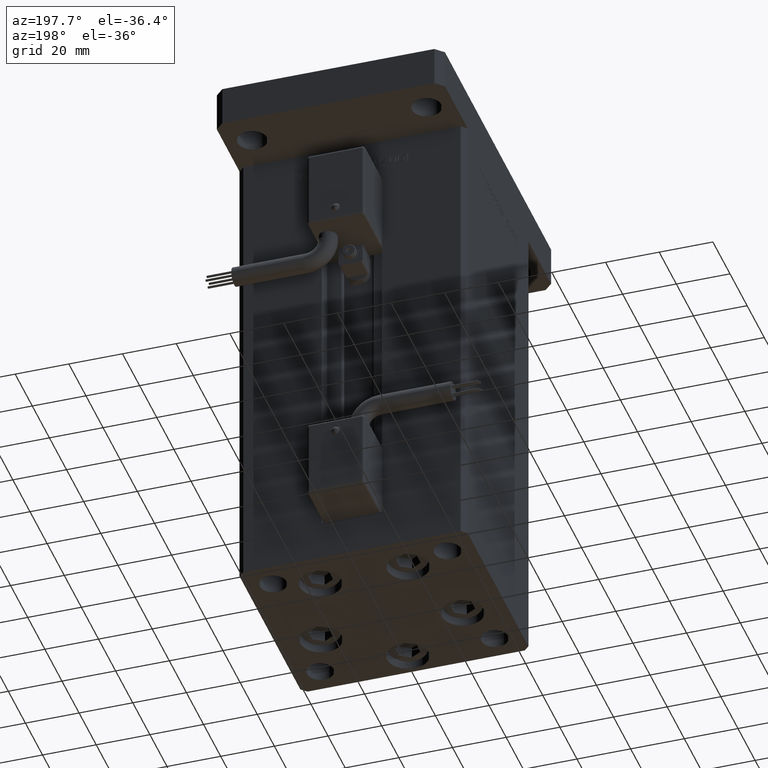
[diagram: clean part render]
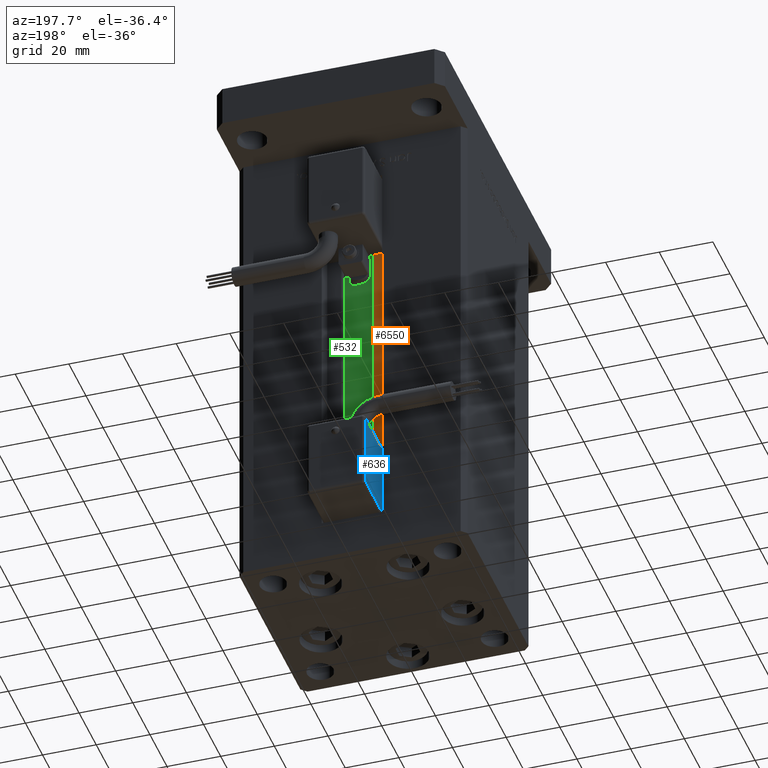
[diagram: same view with three faces highlighted in distinct colors, each labeled with its STEP entity id]
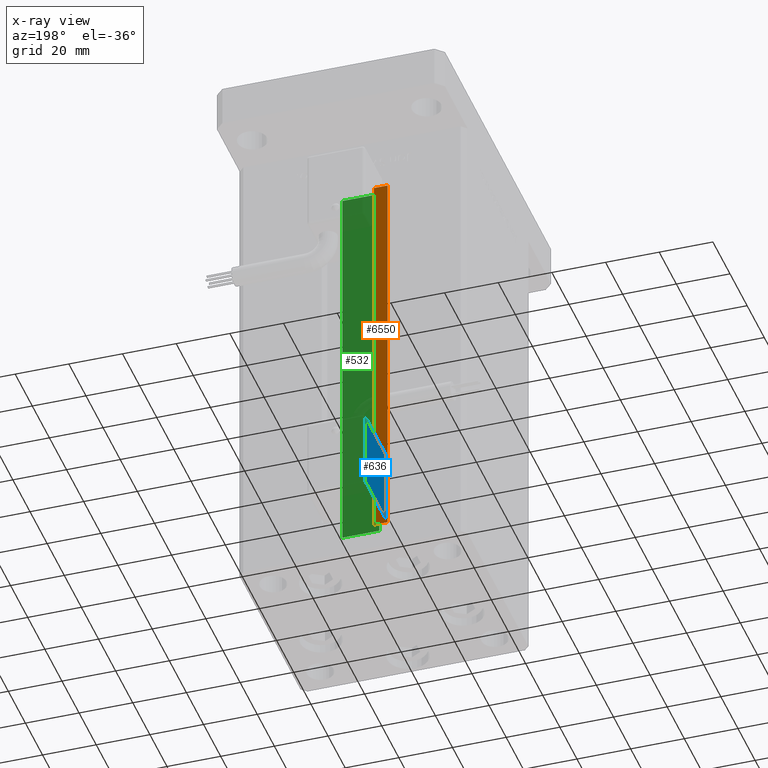
[diagram: x-ray of the same camera — body ghosted, the three highlighted faces saturated]
A machine part, auxiliary view with three faces highlighted in distinct colors.
The next image is the same camera in x-ray (body ghosted, the three faces saturated) — at least one of them is partly hidden behind the body in this view.
Their STEP definitions:

[orange] entity #6550 — the highlighted planar face has unit normal (0, -1, 0).
#4640 = VECTOR ( 'NONE', #36521, 1000.000000000000000 ) ;
#6500 = VERTEX_POINT ( 'NONE', #29760 ) ;
#6550 = ADVANCED_FACE ( 'NONE', ( #25207 ), #29206, .F. ) ;
#7263 = DIRECTION ( 'NONE',  ( 0.000000000000000000, 0.000000000000000000, -1.000000000000000000 ) ) ;
#7386 = LINE ( 'NONE', #11953, #20827 ) ;
#7450 = CARTESIAN_POINT ( 'NONE',  ( -11.25000000000000000, 30.99999999999999289, 0.000000000000000000 ) ) ;
#11953 = CARTESIAN_POINT ( 'NONE',  ( -6.183333333333999704, 30.99999999999999289, 0.000000000000000000 ) ) ;
#12757 = LINE ( 'NONE', #55538, #22497 ) ;
#13032 = DIRECTION ( 'NONE',  ( 1.000000000000000000, -0.000000000000000000, -0.000000000000000000 ) ) ;
#16345 = ORIENTED_EDGE ( 'NONE', *, *, #41652, .F. ) ;
#16941 = EDGE_CURVE ( 'NONE', #31103, #44779, #12757, .T. ) ;
#18580 = DIRECTION ( 'NONE',  ( -1.000000000000000000, 0.000000000000000000, 0.000000000000000000 ) ) ;
#19264 = CARTESIAN_POINT ( 'NONE',  ( -11.25000000000000000, 30.99999999999999289, 0.000000000000000000 ) ) ;
#19407 = AXIS2_PLACEMENT_3D ( 'NONE', #34581, #51988, #7263 ) ;
#20827 = VECTOR ( 'NONE', #29062, 1000.000000000000000 ) ;
#22040 = EDGE_CURVE ( 'NONE', #44779, #25702, #7386, .T. ) ;
#22497 = VECTOR ( 'NONE', #13032, 1000.000000000000000 ) ;
#25207 = FACE_OUTER_BOUND ( 'NONE', #39508, .T. ) ;
#25702 = VERTEX_POINT ( 'NONE', #34605 ) ;
#29062 = DIRECTION ( 'NONE',  ( -0.000000000000000000, -0.000000000000000000, 1.000000000000000000 ) ) ;
#29206 = PLANE ( 'NONE',  #19407 ) ;
#29760 = CARTESIAN_POINT ( 'NONE',  ( -11.25000000000000000, 30.99999999999999289, 148.5000000000000000 ) ) ;
#31103 = VERTEX_POINT ( 'NONE', #19264 ) ;
#32930 = CARTESIAN_POINT ( 'NONE',  ( -6.183333333333999704, 30.99999999999999289, 0.000000000000000000 ) ) ;
#33505 = ORIENTED_EDGE ( 'NONE', *, *, #22040, .F. ) ;
#34051 = EDGE_CURVE ( 'NONE', #31103, #6500, #46512, .T. ) ;
#34581 = CARTESIAN_POINT ( 'NONE',  ( -6.183333333333999704, 30.99999999999999289, 0.000000000000000000 ) ) ;
#34605 = CARTESIAN_POINT ( 'NONE',  ( -6.183333333333999704, 30.99999999999999289, 148.5000000000000000 ) ) ;
#36521 = DIRECTION ( 'NONE',  ( -0.000000000000000000, -0.000000000000000000, 1.000000000000000000 ) ) ;
#38262 = ORIENTED_EDGE ( 'NONE', *, *, #16941, .F. ) ;
#39508 = EDGE_LOOP ( 'NONE', ( #33505, #38262, #52816, #16345 ) ) ;
#40217 = CARTESIAN_POINT ( 'NONE',  ( 0.000000000000000000, 30.99999999999999289, 148.5000000000000000 ) ) ;
#41652 = EDGE_CURVE ( 'NONE', #25702, #6500, #48797, .T. ) ;
#44779 = VERTEX_POINT ( 'NONE', #32930 ) ;
#46512 = LINE ( 'NONE', #7450, #4640 ) ;
#48797 = LINE ( 'NONE', #40217, #51365 ) ;
#51365 = VECTOR ( 'NONE', #18580, 1000.000000000000000 ) ;
#51988 = DIRECTION ( 'NONE',  ( 0.000000000000000000, -1.000000000000000000, -0.000000000000000000 ) ) ;
#52816 = ORIENTED_EDGE ( 'NONE', *, *, #34051, .T. ) ;
#55538 = CARTESIAN_POINT ( 'NONE',  ( -6.183333333333999704, 30.99999999999999289, 0.000000000000000000 ) ) ;

[blue] entity #636 — the highlighted planar face has unit normal (-1, 0, 0).
#636 = ADVANCED_FACE ( 'NONE', ( #5881 ), #13868, .T. ) ;
#2757 = CARTESIAN_POINT ( 'NONE',  ( 10.80000000000000071, 26.00000000000000000, -26.00000000000000000 ) ) ;
#3925 = LINE ( 'NONE', #34134, #42176 ) ;
#4271 = EDGE_CURVE ( 'NONE', #28885, #16326, #3925, .T. ) ;
#5881 = FACE_OUTER_BOUND ( 'NONE', #34641, .T. ) ;
#6163 = CARTESIAN_POINT ( 'NONE',  ( 10.80000000000000071, 26.00000000000000000, -55.00000000000000000 ) ) ;
#10457 = VECTOR ( 'NONE', #29253, 1000.000000000000000 ) ;
#12084 = CARTESIAN_POINT ( 'NONE',  ( 10.80000000000000071, 27.00000000000000000, -55.00000000000000000 ) ) ;
#13868 = PLANE ( 'NONE',  #32054 ) ;
#14714 = DIRECTION ( 'NONE',  ( 1.000000000000000000, 4.930380657629929601E-32, 1.094764425253299406E-47 ) ) ;
#16326 = VERTEX_POINT ( 'NONE', #28601 ) ;
#17234 = ORIENTED_EDGE ( 'NONE', *, *, #43051, .T. ) ;
#20523 = ORIENTED_EDGE ( 'NONE', *, *, #43158, .T. ) ;
#21331 = DIRECTION ( 'NONE',  ( -3.108624468950000014E-32, 1.000000000000000000, 1.400000000000000069E-16 ) ) ;
#23517 = DIRECTION ( 'NONE',  ( -2.220446049250000002E-16, -1.200000000000000024E-16, 1.000000000000000000 ) ) ;
#23646 = CARTESIAN_POINT ( 'NONE',  ( 10.80000000000000071, 27.00000000000000000, -54.00000000000000000 ) ) ;
#28139 = LINE ( 'NONE', #2757, #10457 ) ;
#28601 = CARTESIAN_POINT ( 'NONE',  ( 10.80000000000000071, 50.50000000000000000, -54.00000000000000000 ) ) ;
#28885 = VERTEX_POINT ( 'NONE', #23646 ) ;
#29253 = DIRECTION ( 'NONE',  ( 3.108624468950000014E-32, -1.000000000000000000, -1.400000000000000069E-16 ) ) ;
#32054 = AXIS2_PLACEMENT_3D ( 'NONE', #6163, #14714, #54051 ) ;
#34134 = CARTESIAN_POINT ( 'NONE',  ( 10.80000000000000071, 51.50000000000000000, -54.00000000000000000 ) ) ;
#34641 = EDGE_LOOP ( 'NONE', ( #35732, #20523, #47679, #17234 ) ) ;
#35361 = VERTEX_POINT ( 'NONE', #39250 ) ;
#35732 = ORIENTED_EDGE ( 'NONE', *, *, #42829, .T. ) ;
#39250 = CARTESIAN_POINT ( 'NONE',  ( 10.80000000000000071, 50.50000000000000000, -26.00000000000000000 ) ) ;
#42176 = VECTOR ( 'NONE', #21331, 1000.000000000000000 ) ;
#42829 = EDGE_CURVE ( 'NONE', #35361, #55258, #28139, .T. ) ;
#43051 = EDGE_CURVE ( 'NONE', #16326, #35361, #50865, .T. ) ;
#43158 = EDGE_CURVE ( 'NONE', #55258, #28885, #47409, .T. ) ;
#44114 = VECTOR ( 'NONE', #23517, 1000.000000000000000 ) ;
#45128 = CARTESIAN_POINT ( 'NONE',  ( 10.80000000000000071, 27.00000000000000000, -26.00000000000000000 ) ) ;
#45173 = CARTESIAN_POINT ( 'NONE',  ( 10.80000000000000071, 50.50000000000000000, -25.00000000000000000 ) ) ;
#47139 = DIRECTION ( 'NONE',  ( 2.220446049250000002E-16, 1.200000000000000024E-16, -1.000000000000000000 ) ) ;
#47409 = LINE ( 'NONE', #12084, #52338 ) ;
#47679 = ORIENTED_EDGE ( 'NONE', *, *, #4271, .T. ) ;
#50865 = LINE ( 'NONE', #45173, #44114 ) ;
#52338 = VECTOR ( 'NONE', #47139, 1000.000000000000000 ) ;
#54051 = DIRECTION ( 'NONE',  ( 0.000000000000000000, -2.220446049250000002E-16, 1.000000000000000000 ) ) ;
#55258 = VERTEX_POINT ( 'NONE', #45128 ) ;

[green] entity #532 — the highlighted planar face has unit normal (0, -1, 0).
#532 = ADVANCED_FACE ( 'NONE', ( #1600 ), #22712, .F. ) ;
#1152 = ORIENTED_EDGE ( 'NONE', *, *, #19886, .T. ) ;
#1292 = CARTESIAN_POINT ( 'NONE',  ( 0.000000000000000000, 26.99999999999986855, 148.5000000000000000 ) ) ;
#1600 = FACE_OUTER_BOUND ( 'NONE', #9062, .T. ) ;
#2651 = CARTESIAN_POINT ( 'NONE',  ( 6.876153656360465938, 26.99999999999986855, 148.5000000000000000 ) ) ;
#3608 = CARTESIAN_POINT ( 'NONE',  ( -6.876153656360465938, 26.99999999999986855, 0.000000000000000000 ) ) ;
#9062 = EDGE_LOOP ( 'NONE', ( #35147, #51582, #1152, #54793 ) ) ;
#9940 = VECTOR ( 'NONE', #26414, 1000.000000000000000 ) ;
#10584 = VECTOR ( 'NONE', #16441, 1000.000000000000000 ) ;
#10736 = VECTOR ( 'NONE', #42374, 1000.000000000000000 ) ;
#12162 = CARTESIAN_POINT ( 'NONE',  ( 6.876153656360465938, 26.99999999999986855, 0.000000000000000000 ) ) ;
#13304 = LINE ( 'NONE', #30686, #9940 ) ;
#14965 = LINE ( 'NONE', #1292, #50030 ) ;
#15145 = CARTESIAN_POINT ( 'NONE',  ( -6.876153656360465938, 26.99999999999986855, 0.000000000000000000 ) ) ;
#16441 = DIRECTION ( 'NONE',  ( 1.000000000000000000, -0.000000000000000000, -0.000000000000000000 ) ) ;
#18149 = CARTESIAN_POINT ( 'NONE',  ( 6.876153656360465938, 26.99999999999986855, 0.000000000000000000 ) ) ;
#19886 = EDGE_CURVE ( 'NONE', #42342, #24082, #46655, .T. ) ;
#22712 = PLANE ( 'NONE',  #49355 ) ;
#23436 = VERTEX_POINT ( 'NONE', #29905 ) ;
#24082 = VERTEX_POINT ( 'NONE', #46881 ) ;
#24289 = VERTEX_POINT ( 'NONE', #2651 ) ;
#26414 = DIRECTION ( 'NONE',  ( -0.000000000000000000, -0.000000000000000000, 1.000000000000000000 ) ) ;
#27287 = EDGE_CURVE ( 'NONE', #23436, #24289, #13304, .T. ) ;
#29905 = CARTESIAN_POINT ( 'NONE',  ( 6.876153656360465938, 26.99999999999986855, 0.000000000000000000 ) ) ;
#30357 = EDGE_CURVE ( 'NONE', #24289, #24082, #14965, .T. ) ;
#30686 = CARTESIAN_POINT ( 'NONE',  ( 6.876153656360465938, 26.99999999999986855, 0.000000000000000000 ) ) ;
#31541 = DIRECTION ( 'NONE',  ( 0.000000000000000000, -1.000000000000000000, -0.000000000000000000 ) ) ;
#35147 = ORIENTED_EDGE ( 'NONE', *, *, #27287, .F. ) ;
#42342 = VERTEX_POINT ( 'NONE', #15145 ) ;
#42374 = DIRECTION ( 'NONE',  ( -0.000000000000000000, -0.000000000000000000, 1.000000000000000000 ) ) ;
#46655 = LINE ( 'NONE', #3608, #10736 ) ;
#46881 = CARTESIAN_POINT ( 'NONE',  ( -6.876153656360465938, 26.99999999999986855, 148.5000000000000000 ) ) ;
#48655 = DIRECTION ( 'NONE',  ( 0.000000000000000000, 0.000000000000000000, -1.000000000000000000 ) ) ;
#49355 = AXIS2_PLACEMENT_3D ( 'NONE', #18149, #31541, #48655 ) ;
#49748 = DIRECTION ( 'NONE',  ( -1.000000000000000000, 0.000000000000000000, 0.000000000000000000 ) ) ;
#50030 = VECTOR ( 'NONE', #49748, 1000.000000000000000 ) ;
#50100 = LINE ( 'NONE', #12162, #10584 ) ;
#51582 = ORIENTED_EDGE ( 'NONE', *, *, #51924, .F. ) ;
#51924 = EDGE_CURVE ( 'NONE', #42342, #23436, #50100, .T. ) ;
#54793 = ORIENTED_EDGE ( 'NONE', *, *, #30357, .F. ) ;